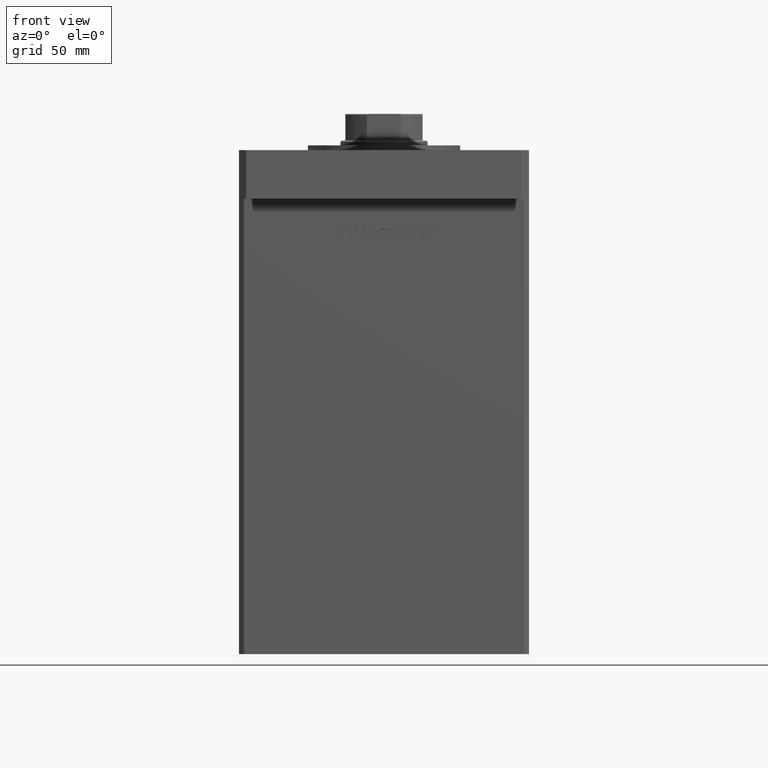
[diagram: clean part render]
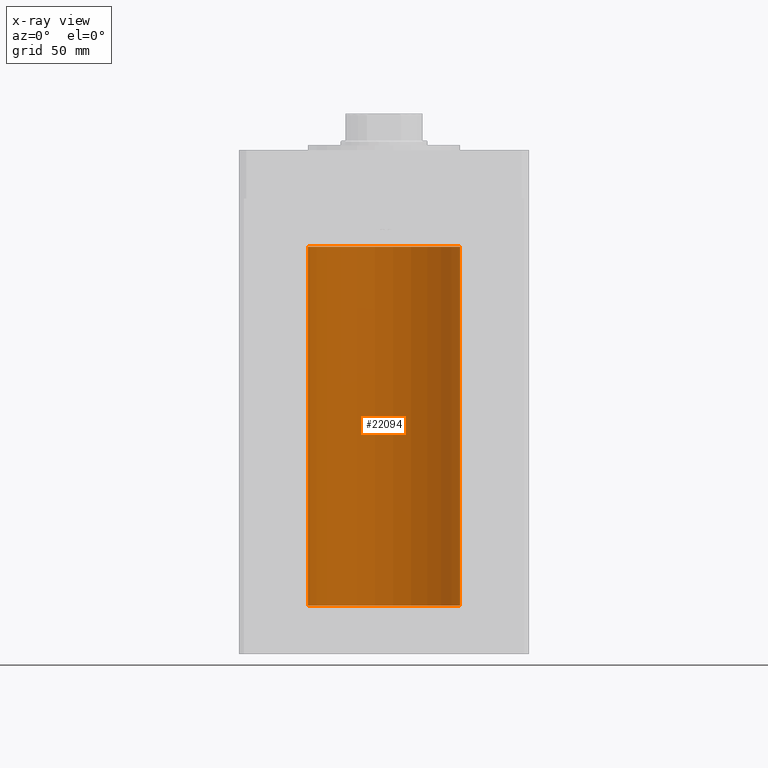
[diagram: x-ray — body ghosted, one internal face saturated and labeled with its STEP entity id]
A machine part, front view, then the same camera in x-ray: the body is ghosted and one INTERNAL B-rep face — a face not visible from any outside direction — is saturated and labeled: STEP entity #22094.
In plain terms, the highlighted cylindrical surface (partial cylindrical patch) has radius 31.5 mm, axis along (-0, -0, -1).
Its self-contained STEP definition (entity closure, byte-faithful):
#562 = AXIS2_PLACEMENT_3D ( 'NONE', #37434, #33349, #20248 ) ;
#4192 = FACE_OUTER_BOUND ( 'NONE', #41149, .T. ) ;
#6644 = EDGE_CURVE ( 'NONE', #48424, #39561, #42992, .T. ) ;
#6970 = EDGE_CURVE ( 'NONE', #30265, #31279, #43865, .T. ) ;
#7811 = VECTOR ( 'NONE', #33184, 1000.000000000000000 ) ;
#8632 = EDGE_CURVE ( 'NONE', #48424, #30265, #20807, .T. ) ;
#8968 = VECTOR ( 'NONE', #49453, 1000.000000000000000 ) ;
#10576 = DIRECTION ( 'NONE',  ( 1.000000000000000000, 0.000000000000000000, 0.000000000000000000 ) ) ;
#11926 = LINE ( 'NONE', #12201, #7811 ) ;
#12201 = CARTESIAN_POINT ( 'NONE',  ( -31.50000000000000000, 0.000000000000000000, 148.5000000000000000 ) ) ;
#16186 = CARTESIAN_POINT ( 'NONE',  ( 31.50000000000000000, 3.857637417314162689E-15, 148.5000000000000000 ) ) ;
#18707 = ORIENTED_EDGE ( 'NONE', *, *, #8632, .F. ) ;
#19478 = AXIS2_PLACEMENT_3D ( 'NONE', #34555, #46837, #10576 ) ;
#20248 = DIRECTION ( 'NONE',  ( -1.000000000000000000, 0.000000000000000000, 0.000000000000000000 ) ) ;
#20432 = CARTESIAN_POINT ( 'NONE',  ( 31.50000000000000000, 3.857637417314162689E-15, 0.000000000000000000 ) ) ;
#20764 = CARTESIAN_POINT ( 'NONE',  ( 31.50000000000000000, 3.857637417314162689E-15, 148.5000000000000000 ) ) ;
#20799 = CYLINDRICAL_SURFACE ( 'NONE', #562, 31.50000000000000000 ) ;
#20807 = LINE ( 'NONE', #16186, #8968 ) ;
#22039 = ORIENTED_EDGE ( 'NONE', *, *, #6970, .F. ) ;
#22094 = ADVANCED_FACE ( 'NONE', ( #4192 ), #20799, .F. ) ;
#27960 = CARTESIAN_POINT ( 'NONE',  ( -31.50000000000000000, 0.000000000000000000, 148.5000000000000000 ) ) ;
#29077 = AXIS2_PLACEMENT_3D ( 'NONE', #29181, #45820, #47140 ) ;
#29181 = CARTESIAN_POINT ( 'NONE',  ( 0.000000000000000000, 0.000000000000000000, 0.000000000000000000 ) ) ;
#30265 = VERTEX_POINT ( 'NONE', #20432 ) ;
#31279 = VERTEX_POINT ( 'NONE', #32672 ) ;
#32672 = CARTESIAN_POINT ( 'NONE',  ( -31.50000000000000000, 0.000000000000000000, 0.000000000000000000 ) ) ;
#33184 = DIRECTION ( 'NONE',  ( -0.000000000000000000, -0.000000000000000000, -1.000000000000000000 ) ) ;
#33349 = DIRECTION ( 'NONE',  ( -0.000000000000000000, -0.000000000000000000, -1.000000000000000000 ) ) ;
#34555 = CARTESIAN_POINT ( 'NONE',  ( 0.000000000000000000, 0.000000000000000000, 148.5000000000000000 ) ) ;
#37434 = CARTESIAN_POINT ( 'NONE',  ( 0.000000000000000000, 0.000000000000000000, 148.5000000000000000 ) ) ;
#39561 = VERTEX_POINT ( 'NONE', #27960 ) ;
#40825 = ORIENTED_EDGE ( 'NONE', *, *, #6644, .T. ) ;
#41149 = EDGE_LOOP ( 'NONE', ( #18707, #40825, #43665, #22039 ) ) ;
#42992 = CIRCLE ( 'NONE', #19478, 31.50000000000000000 ) ;
#43665 = ORIENTED_EDGE ( 'NONE', *, *, #50636, .T. ) ;
#43865 = CIRCLE ( 'NONE', #29077, 31.50000000000000000 ) ;
#45820 = DIRECTION ( 'NONE',  ( -0.000000000000000000, 0.000000000000000000, 1.000000000000000000 ) ) ;
#46837 = DIRECTION ( 'NONE',  ( -0.000000000000000000, 0.000000000000000000, 1.000000000000000000 ) ) ;
#47140 = DIRECTION ( 'NONE',  ( 1.000000000000000000, 0.000000000000000000, 0.000000000000000000 ) ) ;
#48424 = VERTEX_POINT ( 'NONE', #20764 ) ;
#49453 = DIRECTION ( 'NONE',  ( -0.000000000000000000, -0.000000000000000000, -1.000000000000000000 ) ) ;
#50636 = EDGE_CURVE ( 'NONE', #39561, #31279, #11926, .T. ) ;